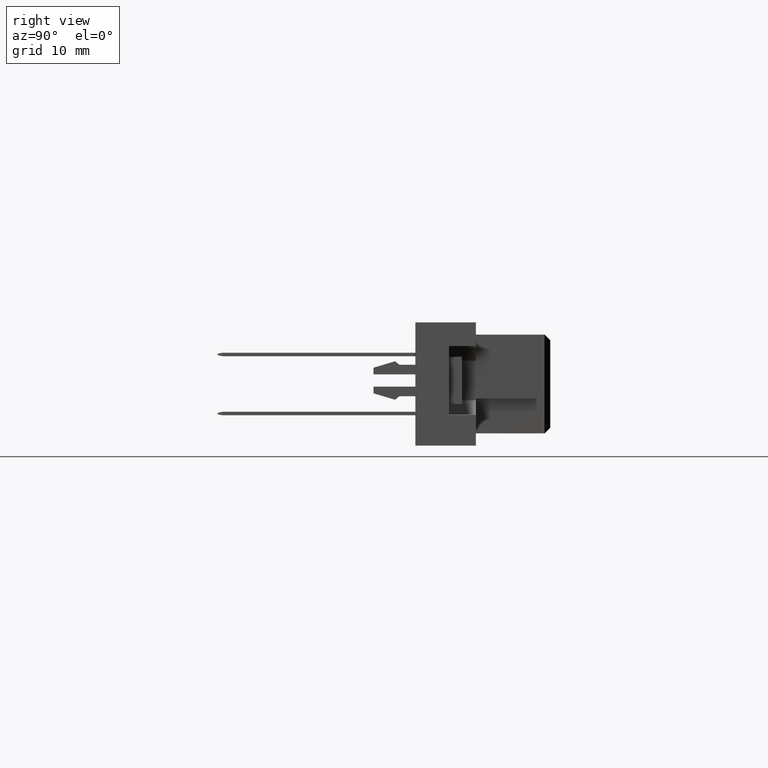
[diagram: clean part render]
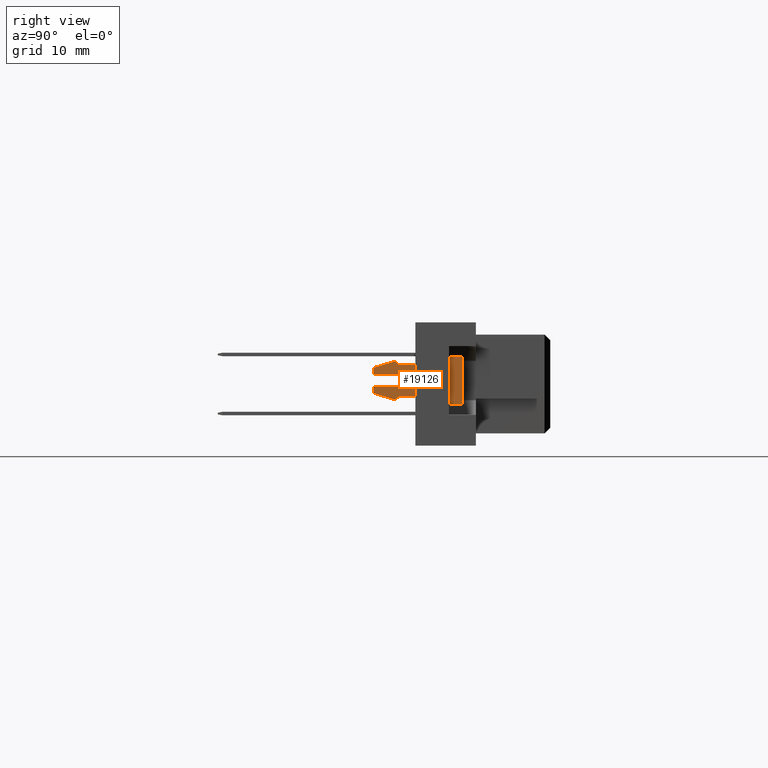
[diagram: same view with one face highlighted and labeled with its STEP entity id]
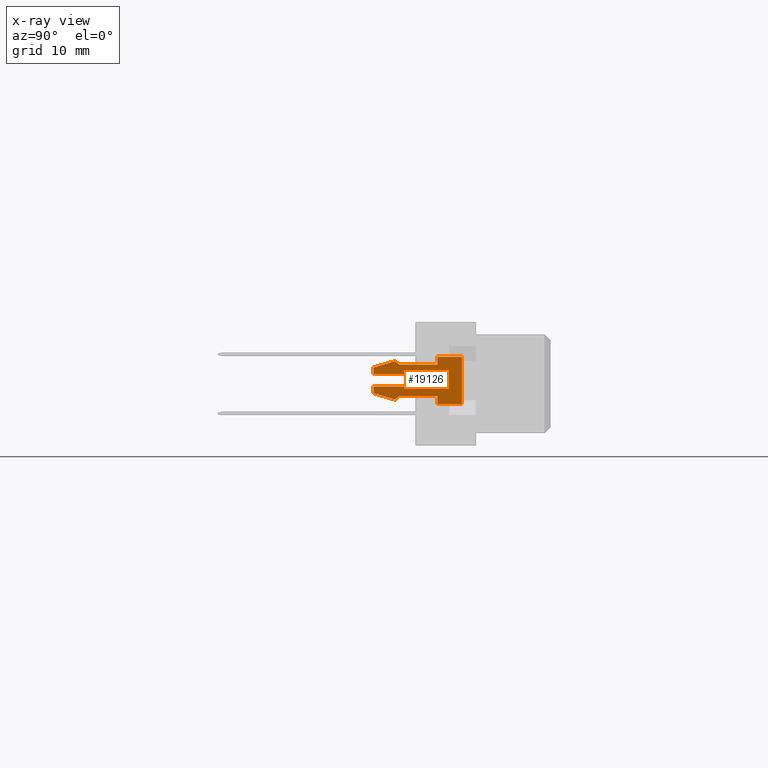
[diagram: x-ray of the same camera — body ghosted, the highlighted face saturated]
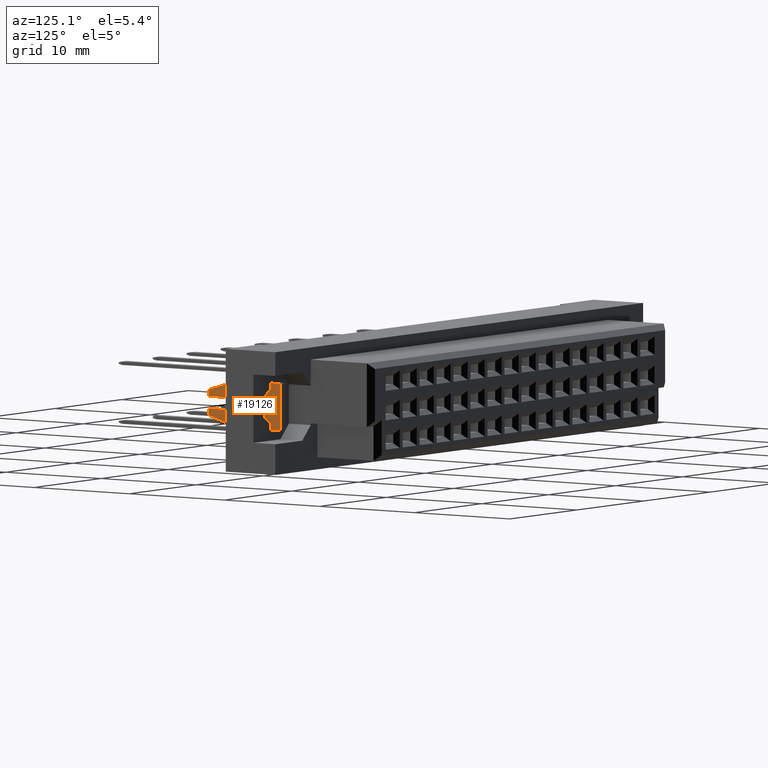
[diagram: same view with one face highlighted and labeled with its STEP entity id]
A machine part, right view. The second image highlights one B-rep face of the part: STEP entity #19126.
The next image is the same camera in x-ray: the body ghosted, the highlighted face saturated — about 0% of this face is hidden behind the body in this view.
A second angle (auxiliary view) of the same face is appended — the face is thin or edge-on in the first view.
In plain terms, the highlighted planar face has unit normal (1, 0, 0).
Its self-contained STEP definition (entity closure, byte-faithful):
#344 = ORIENTED_EDGE ( 'NONE', *, *, #3081, .F. ) ;
#392 = CARTESIAN_POINT ( 'NONE',  ( 1.655000000000000249, -2.149999999999999023, -0.3000000000000016542 ) ) ;
#580 = CARTESIAN_POINT ( 'NONE',  ( 2.029999999999998916, 3.599999999999999201, -0.3000000000000016542 ) ) ;
#747 = VECTOR ( 'NONE', #10584, 1000.000000000000000 ) ;
#1186 = EDGE_CURVE ( 'NONE', #13981, #9741, #19642, .T. ) ;
#1427 = VECTOR ( 'NONE', #4724, 1000.000000000000000 ) ;
#1618 = CARTESIAN_POINT ( 'NONE',  ( 2.030000000000000693, 1.489999999999999991, -0.3000000000000016542 ) ) ;
#1670 = VECTOR ( 'NONE', #9447, 999.9999999999998863 ) ;
#1740 = CARTESIAN_POINT ( 'NONE',  ( 0.0000000000000000000, 0.0000000000000000000, -0.3000000000000016542 ) ) ;
#1776 = CARTESIAN_POINT ( 'NONE',  ( -1.654999999999999805, -2.149999999999999023, -0.3000000000000016542 ) ) ;
#1975 = DIRECTION ( 'NONE',  ( -1.330309414092643532E-16, 1.000000000000000000, 0.0000000000000000000 ) ) ;
#2061 = VERTEX_POINT ( 'NONE', #6562 ) ;
#2116 = ORIENTED_EDGE ( 'NONE', *, *, #10143, .F. ) ;
#2256 = VERTEX_POINT ( 'NONE', #18949 ) ;
#2297 = CIRCLE ( 'NONE', #2990, 0.5250000000000002442 ) ;
#2497 = ORIENTED_EDGE ( 'NONE', *, *, #11977, .F. ) ;
#2673 = DIRECTION ( 'NONE',  ( -1.000000000000000000, 0.0000000000000000000, 0.0000000000000000000 ) ) ;
#2990 = AXIS2_PLACEMENT_3D ( 'NONE', #5873, #10855, #2673 ) ;
#3007 = EDGE_CURVE ( 'NONE', #18335, #7465, #20152, .T. ) ;
#3039 = ORIENTED_EDGE ( 'NONE', *, *, #16943, .F. ) ;
#3081 = EDGE_CURVE ( 'NONE', #20142, #2061, #18767, .T. ) ;
#3298 = LINE ( 'NONE', #12849, #20015 ) ;
#3677 = VECTOR ( 'NONE', #5876, 1000.000000000000000 ) ;
#4022 = VECTOR ( 'NONE', #11770, 1000.000000000000227 ) ;
#4073 = EDGE_LOOP ( 'NONE', ( #3039, #16065, #15611, #19920, #2497, #11678, #344, #6017, #2116, #17760, #11050, #4541, #16563, #11936, #19934, #16746 ) ) ;
#4214 = CARTESIAN_POINT ( 'NONE',  ( 0.5250000000000004663, -4.000000000000000000, -0.3000000000000016542 ) ) ;
#4246 = CARTESIAN_POINT ( 'NONE',  ( 1.350000000000001421, -1.769999999999998908, -0.3000000000000016542 ) ) ;
#4372 = EDGE_CURVE ( 'NONE', #19823, #16750, #3298, .T. ) ;
#4405 = VERTEX_POINT ( 'NONE', #20701 ) ;
#4411 = CARTESIAN_POINT ( 'NONE',  ( -0.5250000000000002442, 0.0000000000000000000, -0.3000000000000016542 ) ) ;
#4541 = ORIENTED_EDGE ( 'NONE', *, *, #6426, .F. ) ;
#4724 = DIRECTION ( 'NONE',  ( -1.000000000000000000, -1.068179480281285493E-16, 0.0000000000000000000 ) ) ;
#5763 = EDGE_CURVE ( 'NONE', #5984, #20142, #13461, .T. ) ;
#5831 = CARTESIAN_POINT ( 'NONE',  ( -1.350000000000000533, 1.489999999999995772, -0.3000000000000016542 ) ) ;
#5873 = CARTESIAN_POINT ( 'NONE',  ( 0.0000000000000000000, 0.0000000000000000000, -0.3000000000000016542 ) ) ;
#5876 = DIRECTION ( 'NONE',  ( 1.330309414092643532E-16, -1.000000000000000000, -0.0000000000000000000 ) ) ;
#5984 = VERTEX_POINT ( 'NONE', #17378 ) ;
#6017 = ORIENTED_EDGE ( 'NONE', *, *, #5763, .F. ) ;
#6146 = EDGE_CURVE ( 'NONE', #2061, #13560, #19787, .T. ) ;
#6216 = CARTESIAN_POINT ( 'NONE',  ( -0.5249999999999994671, -4.000000000000000000, -0.3000000000000016542 ) ) ;
#6426 = EDGE_CURVE ( 'NONE', #16750, #12348, #20829, .T. ) ;
#6435 = VECTOR ( 'NONE', #8420, 1000.000000000000000 ) ;
#6562 = CARTESIAN_POINT ( 'NONE',  ( 1.350000000000001421, -1.769999999999998908, -0.3000000000000016542 ) ) ;
#6865 = CARTESIAN_POINT ( 'NONE',  ( 1.349999999999999867, 1.489999999999999991, -0.3000000000000016542 ) ) ;
#7238 = CARTESIAN_POINT ( 'NONE',  ( 1.100000000000000533, -4.000000000000000000, -0.3000000000000016542 ) ) ;
#7465 = VERTEX_POINT ( 'NONE', #1776 ) ;
#7565 = EDGE_CURVE ( 'NONE', #8320, #2256, #12065, .T. ) ;
#7724 = EDGE_CURVE ( 'NONE', #9741, #4405, #19245, .T. ) ;
#7836 = CARTESIAN_POINT ( 'NONE',  ( -2.029999999999999805, 1.489999999999999103, -0.3000000000000016542 ) ) ;
#8320 = VERTEX_POINT ( 'NONE', #10530 ) ;
#8420 = DIRECTION ( 'NONE',  ( -6.166078706078698497E-16, 1.000000000000000000, 0.0000000000000000000 ) ) ;
#8422 = VECTOR ( 'NONE', #1975, 1000.000000000000000 ) ;
#8591 = CARTESIAN_POINT ( 'NONE',  ( 1.655000000000000249, -2.149999999999999023, -0.3000000000000016542 ) ) ;
#8935 = DIRECTION ( 'NONE',  ( -0.6259456360973114641, -0.7798666941540279840, 0.0000000000000000000 ) ) ;
#9405 = DIRECTION ( 'NONE',  ( 0.0000000000000000000, 0.0000000000000000000, -1.000000000000000000 ) ) ;
#9447 = DIRECTION ( 'NONE',  ( -0.6259456360973114641, 0.7798666941540279840, 0.0000000000000000000 ) ) ;
#9533 = DIRECTION ( 'NONE',  ( -2.055359568692899499E-16, -1.000000000000000000, -0.0000000000000000000 ) ) ;
#9642 = VECTOR ( 'NONE', #8935, 999.9999999999998863 ) ;
#9667 = CARTESIAN_POINT ( 'NONE',  ( -1.654999999999999805, -2.149999999999999023, -0.3000000000000016542 ) ) ;
#9741 = VERTEX_POINT ( 'NONE', #580 ) ;
#10143 = EDGE_CURVE ( 'NONE', #2256, #5984, #12325, .T. ) ;
#10511 = CARTESIAN_POINT ( 'NONE',  ( -1.350000000000000089, -1.769999999999998908, -0.3000000000000016542 ) ) ;
#10530 = CARTESIAN_POINT ( 'NONE',  ( 0.5250000000000002442, 0.0000000000000000000, -0.3000000000000016542 ) ) ;
#10584 = DIRECTION ( 'NONE',  ( 5.421010862427522170E-17, -1.000000000000000000, -0.0000000000000000000 ) ) ;
#10735 = CARTESIAN_POINT ( 'NONE',  ( 1.349999999999999867, 1.489999999999999991, -0.3000000000000016542 ) ) ;
#10754 = EDGE_CURVE ( 'NONE', #4405, #20071, #20853, .T. ) ;
#10841 = DIRECTION ( 'NONE',  ( 1.000000000000000000, 0.0000000000000000000, 0.0000000000000000000 ) ) ;
#10855 = DIRECTION ( 'NONE',  ( 0.0000000000000000000, 0.0000000000000000000, -1.000000000000000000 ) ) ;
#10858 = LINE ( 'NONE', #13944, #3677 ) ;
#10927 = AXIS2_PLACEMENT_3D ( 'NONE', #1740, #9405, #17864 ) ;
#11050 = ORIENTED_EDGE ( 'NONE', *, *, #13325, .F. ) ;
#11068 = DIRECTION ( 'NONE',  ( 1.000000000000000000, 0.0000000000000000000, 0.0000000000000000000 ) ) ;
#11312 = PLANE ( 'NONE',  #10927 ) ;
#11678 = ORIENTED_EDGE ( 'NONE', *, *, #6146, .F. ) ;
#11770 = DIRECTION ( 'NONE',  ( 0.2873478855663452181, 0.9578262852211514300, 0.0000000000000000000 ) ) ;
#11916 = VECTOR ( 'NONE', #19142, 1000.000000000000000 ) ;
#11936 = ORIENTED_EDGE ( 'NONE', *, *, #13441, .F. ) ;
#11977 = EDGE_CURVE ( 'NONE', #13560, #13981, #15608, .T. ) ;
#12065 = LINE ( 'NONE', #4214, #747 ) ;
#12134 = VECTOR ( 'NONE', #16025, 1000.000000000000114 ) ;
#12325 = LINE ( 'NONE', #7238, #16463 ) ;
#12348 = VERTEX_POINT ( 'NONE', #4411 ) ;
#12613 = CARTESIAN_POINT ( 'NONE',  ( -1.099999999999999423, -4.000000000000000000, -0.3000000000000016542 ) ) ;
#12627 = LINE ( 'NONE', #19084, #19965 ) ;
#12685 = CARTESIAN_POINT ( 'NONE',  ( -2.030000000000000249, 3.600000000000000089, -0.3000000000000016542 ) ) ;
#12849 = CARTESIAN_POINT ( 'NONE',  ( -1.099999999999999423, -4.000000000000000000, -0.3000000000000016542 ) ) ;
#12950 = LINE ( 'NONE', #9667, #12134 ) ;
#13325 = EDGE_CURVE ( 'NONE', #12348, #8320, #2297, .T. ) ;
#13441 = EDGE_CURVE ( 'NONE', #7465, #19823, #12950, .T. ) ;
#13461 = LINE ( 'NONE', #8591, #4022 ) ;
#13560 = VERTEX_POINT ( 'NONE', #18233 ) ;
#13944 = CARTESIAN_POINT ( 'NONE',  ( -1.350000000000000533, 1.489999999999995772, -0.3000000000000016542 ) ) ;
#13981 = VERTEX_POINT ( 'NONE', #17340 ) ;
#14418 = DIRECTION ( 'NONE',  ( 1.000000000000000000, 0.0000000000000000000, 0.0000000000000000000 ) ) ;
#14459 = VECTOR ( 'NONE', #9533, 1000.000000000000000 ) ;
#14463 = EDGE_CURVE ( 'NONE', #18664, #18335, #10858, .T. ) ;
#15521 = VECTOR ( 'NONE', #14418, 1000.000000000000000 ) ;
#15608 = LINE ( 'NONE', #10735, #15521 ) ;
#15611 = ORIENTED_EDGE ( 'NONE', *, *, #7724, .F. ) ;
#16025 = DIRECTION ( 'NONE',  ( 0.2873478855663454401, -0.9578262852211513190, 0.0000000000000000000 ) ) ;
#16065 = ORIENTED_EDGE ( 'NONE', *, *, #10754, .F. ) ;
#16280 = FACE_OUTER_BOUND ( 'NONE', #4073, .T. ) ;
#16463 = VECTOR ( 'NONE', #10841, 1000.000000000000000 ) ;
#16563 = ORIENTED_EDGE ( 'NONE', *, *, #4372, .F. ) ;
#16663 = CARTESIAN_POINT ( 'NONE',  ( -0.5249999999999994671, -4.000000000000000000, -0.3000000000000016542 ) ) ;
#16746 = ORIENTED_EDGE ( 'NONE', *, *, #14463, .F. ) ;
#16750 = VERTEX_POINT ( 'NONE', #16663 ) ;
#16943 = EDGE_CURVE ( 'NONE', #20071, #18664, #12627, .T. ) ;
#17195 = DIRECTION ( 'NONE',  ( 1.000000000000000000, 0.0000000000000000000, 0.0000000000000000000 ) ) ;
#17340 = CARTESIAN_POINT ( 'NONE',  ( 2.030000000000000693, 1.489999999999999991, -0.3000000000000016542 ) ) ;
#17378 = CARTESIAN_POINT ( 'NONE',  ( 1.100000000000000533, -4.000000000000000000, -0.3000000000000016542 ) ) ;
#17713 = CARTESIAN_POINT ( 'NONE',  ( -1.350000000000000089, -1.769999999999998908, -0.3000000000000016542 ) ) ;
#17760 = ORIENTED_EDGE ( 'NONE', *, *, #7565, .F. ) ;
#17864 = DIRECTION ( 'NONE',  ( -1.000000000000000000, 0.0000000000000000000, 0.0000000000000000000 ) ) ;
#18233 = CARTESIAN_POINT ( 'NONE',  ( 1.349999999999999867, 1.489999999999999991, -0.3000000000000016542 ) ) ;
#18335 = VERTEX_POINT ( 'NONE', #17713 ) ;
#18664 = VERTEX_POINT ( 'NONE', #5831 ) ;
#18767 = LINE ( 'NONE', #4246, #1670 ) ;
#18949 = CARTESIAN_POINT ( 'NONE',  ( 0.5250000000000004663, -4.000000000000000000, -0.3000000000000016542 ) ) ;
#19084 = CARTESIAN_POINT ( 'NONE',  ( -1.350000000000000533, 1.489999999999995772, -0.3000000000000016542 ) ) ;
#19126 = ADVANCED_FACE ( 'NONE', ( #16280 ), #11312, .T. ) ;
#19142 = DIRECTION ( 'NONE',  ( -2.168404344971008868E-16, 1.000000000000000000, 0.0000000000000000000 ) ) ;
#19245 = LINE ( 'NONE', #12685, #1427 ) ;
#19642 = LINE ( 'NONE', #1618, #6435 ) ;
#19787 = LINE ( 'NONE', #6865, #8422 ) ;
#19823 = VERTEX_POINT ( 'NONE', #12613 ) ;
#19920 = ORIENTED_EDGE ( 'NONE', *, *, #1186, .F. ) ;
#19934 = ORIENTED_EDGE ( 'NONE', *, *, #3007, .F. ) ;
#19965 = VECTOR ( 'NONE', #17195, 1000.000000000000000 ) ;
#20011 = CARTESIAN_POINT ( 'NONE',  ( -2.029999999999999805, 1.489999999999999103, -0.3000000000000016542 ) ) ;
#20015 = VECTOR ( 'NONE', #11068, 1000.000000000000000 ) ;
#20071 = VERTEX_POINT ( 'NONE', #20011 ) ;
#20142 = VERTEX_POINT ( 'NONE', #392 ) ;
#20152 = LINE ( 'NONE', #10511, #9642 ) ;
#20701 = CARTESIAN_POINT ( 'NONE',  ( -2.030000000000000249, 3.600000000000000089, -0.3000000000000016542 ) ) ;
#20829 = LINE ( 'NONE', #6216, #11916 ) ;
#20853 = LINE ( 'NONE', #7836, #14459 ) ;